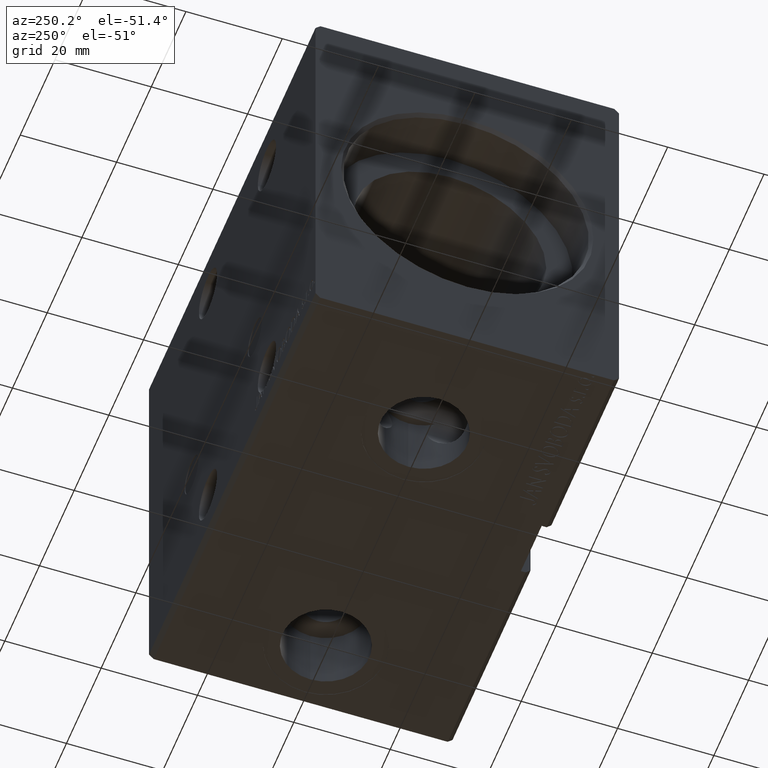
[diagram: clean part render]
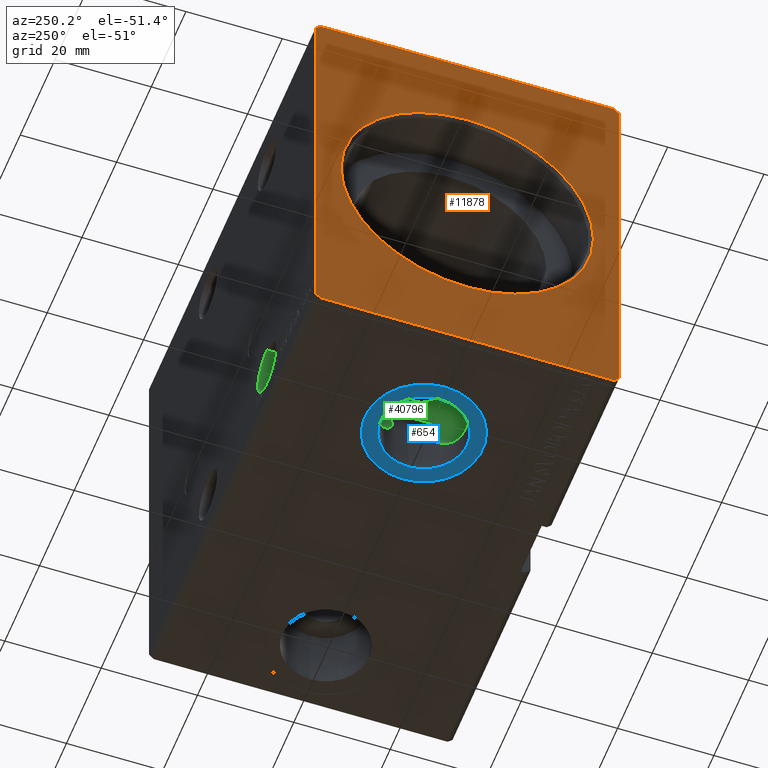
[diagram: same view with three faces highlighted in distinct colors, each labeled with its STEP entity id]
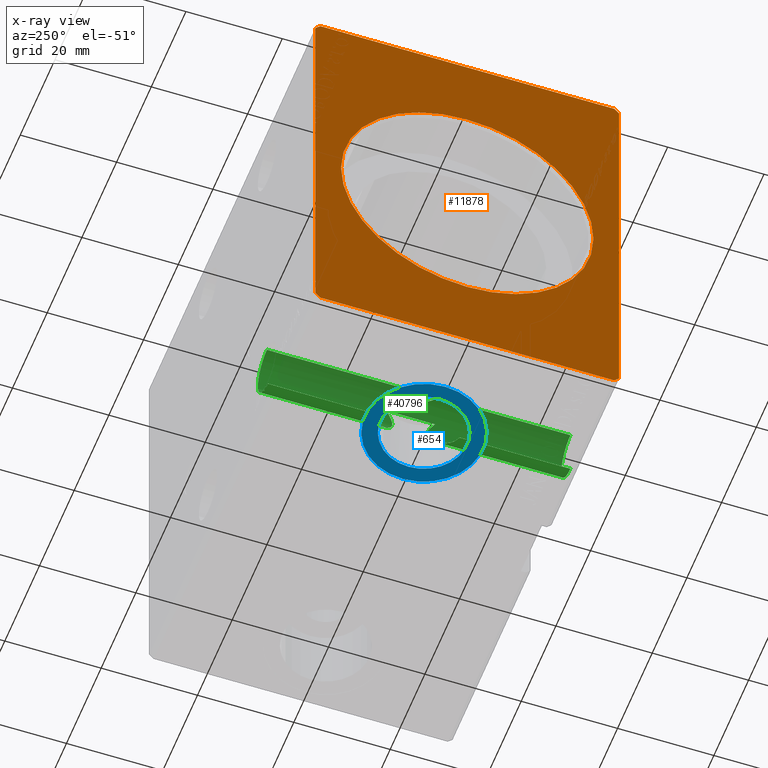
[diagram: x-ray of the same camera — body ghosted, the three highlighted faces saturated]
A machine part, auxiliary view with three faces highlighted in distinct colors.
The next image is the same camera in x-ray (body ghosted, the three faces saturated) — at least one of them is partly hidden behind the body in this view.
Their STEP definitions:

[orange] entity #11878 — the highlighted planar face has unit normal (1, 0, 0).
#94 = DIRECTION ( 'NONE',  ( 0.000000000000000000, 0.000000000000000000, -1.000000000000000000 ) ) ;
#215 = EDGE_CURVE ( 'NONE', #16949, #5249, #23478, .T. ) ;
#374 = CARTESIAN_POINT ( 'NONE',  ( 0.000000000000000000, -31.50000000000000000, -41.50000000000000711 ) ) ;
#994 = FACE_BOUND ( 'NONE', #37505, .T. ) ;
#1101 = CARTESIAN_POINT ( 'NONE',  ( 0.000000000000000000, -30.50000000000000711, -42.50000000000000711 ) ) ;
#2665 = LINE ( 'NONE', #21940, #16875 ) ;
#2708 = EDGE_CURVE ( 'NONE', #15067, #21710, #35080, .T. ) ;
#4043 = DIRECTION ( 'NONE',  ( 0.000000000000000000, 0.000000000000000000, -1.000000000000000000 ) ) ;
#4046 = VERTEX_POINT ( 'NONE', #9899 ) ;
#5249 = VERTEX_POINT ( 'NONE', #8014 ) ;
#5703 = ORIENTED_EDGE ( 'NONE', *, *, #29625, .F. ) ;
#6268 = CARTESIAN_POINT ( 'NONE',  ( 0.000000000000000000, -30.50000000000000711, -42.50000000000000711 ) ) ;
#6336 = EDGE_CURVE ( 'NONE', #40453, #4046, #23295, .T. ) ;
#6563 = CIRCLE ( 'NONE', #23795, 26.19999999999998863 ) ;
#7298 = ORIENTED_EDGE ( 'NONE', *, *, #20080, .F. ) ;
#7536 = DIRECTION ( 'NONE',  ( 0.000000000000000000, -0.7071067811865474617, 0.7071067811865474617 ) ) ;
#7614 = CARTESIAN_POINT ( 'NONE',  ( 0.000000000000000000, 0.000000000000000000, 0.000000000000000000 ) ) ;
#8014 = CARTESIAN_POINT ( 'NONE',  ( 0.000000000000000000, 30.50000000000001776, -42.50000000000000711 ) ) ;
#9511 = ORIENTED_EDGE ( 'NONE', *, *, #18408, .F. ) ;
#9899 = CARTESIAN_POINT ( 'NONE',  ( 0.000000000000000000, 30.50000000000001421, 42.49999999999999289 ) ) ;
#10035 = CARTESIAN_POINT ( 'NONE',  ( 0.000000000000000000, -31.50000000000000000, 41.49999999999999289 ) ) ;
#10732 = AXIS2_PLACEMENT_3D ( 'NONE', #18161, #23748, #24570 ) ;
#11010 = DIRECTION ( 'NONE',  ( 0.000000000000000000, 0.7071067811865451302, -0.7071067811865500152 ) ) ;
#11558 = ORIENTED_EDGE ( 'NONE', *, *, #17036, .F. ) ;
#11832 = ORIENTED_EDGE ( 'NONE', *, *, #2708, .F. ) ;
#11878 = ADVANCED_FACE ( 'NONE', ( #994, #14061 ), #38884, .F. ) ;
#12058 = CIRCLE ( 'NONE', #10732, 26.19999999999998863 ) ;
#12711 = CARTESIAN_POINT ( 'NONE',  ( 0.000000000000000000, -30.50000000000000355, 42.49999999999999289 ) ) ;
#13912 = LINE ( 'NONE', #29856, #24741 ) ;
#14061 = FACE_OUTER_BOUND ( 'NONE', #26430, .T. ) ;
#15067 = VERTEX_POINT ( 'NONE', #39847 ) ;
#15180 = LINE ( 'NONE', #34012, #24568 ) ;
#15520 = VECTOR ( 'NONE', #33374, 1000.000000000000000 ) ;
#16875 = VECTOR ( 'NONE', #18828, 999.9999999999998863 ) ;
#16949 = VERTEX_POINT ( 'NONE', #6268 ) ;
#17036 = EDGE_CURVE ( 'NONE', #4046, #23264, #27841, .T. ) ;
#17182 = EDGE_CURVE ( 'NONE', #19348, #40453, #23858, .T. ) ;
#17525 = ORIENTED_EDGE ( 'NONE', *, *, #31252, .T. ) ;
#18161 = CARTESIAN_POINT ( 'NONE',  ( 0.000000000000000000, 0.000000000000000000, 0.000000000000000000 ) ) ;
#18352 = CARTESIAN_POINT ( 'NONE',  ( 0.000000000000000000, 0.000000000000000000, 26.19999999999998863 ) ) ;
#18408 = EDGE_CURVE ( 'NONE', #23264, #15067, #2665, .T. ) ;
#18509 = VERTEX_POINT ( 'NONE', #23510 ) ;
#18828 = DIRECTION ( 'NONE',  ( 0.000000000000000000, -0.7071067811865462405, -0.7071067811865489050 ) ) ;
#19348 = VERTEX_POINT ( 'NONE', #39923 ) ;
#19671 = CARTESIAN_POINT ( 'NONE',  ( 0.000000000000000000, 31.50000000000001421, 41.49999999999999289 ) ) ;
#20080 = EDGE_CURVE ( 'NONE', #21710, #16949, #13912, .T. ) ;
#20759 = CARTESIAN_POINT ( 'NONE',  ( 0.000000000000000000, 31.50000000000001421, -41.50000000000000711 ) ) ;
#21710 = VERTEX_POINT ( 'NONE', #374 ) ;
#21940 = CARTESIAN_POINT ( 'NONE',  ( 0.000000000000000000, -30.50000000000000355, 42.49999999999999289 ) ) ;
#23264 = VERTEX_POINT ( 'NONE', #12711 ) ;
#23295 = LINE ( 'NONE', #35908, #23728 ) ;
#23478 = LINE ( 'NONE', #1101, #26872 ) ;
#23510 = CARTESIAN_POINT ( 'NONE',  ( 0.000000000000000000, 3.208574613766063722E-15, -26.19999999999998863 ) ) ;
#23728 = VECTOR ( 'NONE', #7536, 1000.000000000000114 ) ;
#23748 = DIRECTION ( 'NONE',  ( 1.000000000000000000, 0.000000000000000000, 0.000000000000000000 ) ) ;
#23795 = AXIS2_PLACEMENT_3D ( 'NONE', #35524, #35324, #4043 ) ;
#23858 = LINE ( 'NONE', #20759, #15520 ) ;
#24568 = VECTOR ( 'NONE', #27817, 999.9999999999998863 ) ;
#24570 = DIRECTION ( 'NONE',  ( 0.000000000000000000, 0.000000000000000000, -1.000000000000000000 ) ) ;
#24741 = VECTOR ( 'NONE', #11010, 1000.000000000000114 ) ;
#25271 = ORIENTED_EDGE ( 'NONE', *, *, #35859, .T. ) ;
#26062 = DIRECTION ( 'NONE',  ( 1.000000000000000000, 0.000000000000000000, 0.000000000000000000 ) ) ;
#26273 = ORIENTED_EDGE ( 'NONE', *, *, #17182, .F. ) ;
#26430 = EDGE_LOOP ( 'NONE', ( #30170, #26273, #5703, #31308, #7298, #11832, #9511, #11558 ) ) ;
#26872 = VECTOR ( 'NONE', #35683, 1000.000000000000000 ) ;
#27817 = DIRECTION ( 'NONE',  ( 0.000000000000000000, 0.7071067811865462405, 0.7071067811865489050 ) ) ;
#27841 = LINE ( 'NONE', #29468, #32677 ) ;
#29046 = AXIS2_PLACEMENT_3D ( 'NONE', #7614, #26062, #36187 ) ;
#29468 = CARTESIAN_POINT ( 'NONE',  ( 0.000000000000000000, 30.50000000000001421, 42.49999999999999289 ) ) ;
#29625 = EDGE_CURVE ( 'NONE', #5249, #19348, #15180, .T. ) ;
#29856 = CARTESIAN_POINT ( 'NONE',  ( 0.000000000000000000, -31.50000000000000000, -41.50000000000000711 ) ) ;
#30170 = ORIENTED_EDGE ( 'NONE', *, *, #6336, .F. ) ;
#31252 = EDGE_CURVE ( 'NONE', #18509, #36710, #12058, .T. ) ;
#31308 = ORIENTED_EDGE ( 'NONE', *, *, #215, .F. ) ;
#32677 = VECTOR ( 'NONE', #32755, 1000.000000000000000 ) ;
#32755 = DIRECTION ( 'NONE',  ( 0.000000000000000000, -1.000000000000000000, 0.000000000000000000 ) ) ;
#33374 = DIRECTION ( 'NONE',  ( 0.000000000000000000, 0.000000000000000000, 1.000000000000000000 ) ) ;
#34012 = CARTESIAN_POINT ( 'NONE',  ( 0.000000000000000000, 30.50000000000001776, -42.50000000000000711 ) ) ;
#35080 = LINE ( 'NONE', #10035, #40159 ) ;
#35324 = DIRECTION ( 'NONE',  ( 1.000000000000000000, 0.000000000000000000, 0.000000000000000000 ) ) ;
#35524 = CARTESIAN_POINT ( 'NONE',  ( 0.000000000000000000, 0.000000000000000000, 0.000000000000000000 ) ) ;
#35683 = DIRECTION ( 'NONE',  ( 0.000000000000000000, 1.000000000000000000, 0.000000000000000000 ) ) ;
#35859 = EDGE_CURVE ( 'NONE', #36710, #18509, #6563, .T. ) ;
#35908 = CARTESIAN_POINT ( 'NONE',  ( 0.000000000000000000, 31.50000000000001421, 41.49999999999999289 ) ) ;
#36187 = DIRECTION ( 'NONE',  ( 0.000000000000000000, 0.000000000000000000, -1.000000000000000000 ) ) ;
#36710 = VERTEX_POINT ( 'NONE', #18352 ) ;
#37505 = EDGE_LOOP ( 'NONE', ( #25271, #17525 ) ) ;
#38884 = PLANE ( 'NONE',  #29046 ) ;
#39847 = CARTESIAN_POINT ( 'NONE',  ( 0.000000000000000000, -31.50000000000000000, 41.49999999999999289 ) ) ;
#39923 = CARTESIAN_POINT ( 'NONE',  ( 0.000000000000000000, 31.50000000000001421, -41.50000000000000711 ) ) ;
#40159 = VECTOR ( 'NONE', #94, 1000.000000000000000 ) ;
#40453 = VERTEX_POINT ( 'NONE', #19671 ) ;

[blue] entity #654 — the highlighted planar face has unit normal (0, 0, -1).
#654 = ADVANCED_FACE ( 'NONE', ( #2372, #33233 ), #11507, .T. ) ;
#2110 = EDGE_CURVE ( 'NONE', #25720, #40090, #9092, .T. ) ;
#2372 = FACE_BOUND ( 'NONE', #18502, .T. ) ;
#2555 = CIRCLE ( 'NONE', #15133, 9.000000000000001776 ) ;
#3654 = DIRECTION ( 'NONE',  ( 0.000000000000000000, 0.000000000000000000, -1.000000000000000000 ) ) ;
#3802 = AXIS2_PLACEMENT_3D ( 'NONE', #35541, #3654, #12989 ) ;
#3896 = EDGE_LOOP ( 'NONE', ( #27431, #39104 ) ) ;
#4855 = DIRECTION ( 'NONE',  ( 0.000000000000000000, 0.000000000000000000, -1.000000000000000000 ) ) ;
#5677 = EDGE_CURVE ( 'NONE', #8402, #6549, #2555, .T. ) ;
#6549 = VERTEX_POINT ( 'NONE', #38764 ) ;
#6993 = CARTESIAN_POINT ( 'NONE',  ( 12.75000000000000178, -2.665753871451547918E-15, -42.40000000000000568 ) ) ;
#8402 = VERTEX_POINT ( 'NONE', #31538 ) ;
#8441 = DIRECTION ( 'NONE',  ( 0.000000000000000000, 0.000000000000000000, -1.000000000000000000 ) ) ;
#8592 = CARTESIAN_POINT ( 'NONE',  ( 0.000000000000000000, 0.000000000000000000, -42.40000000000000568 ) ) ;
#9092 = CIRCLE ( 'NONE', #20334, 12.25000000000000000 ) ;
#11507 = PLANE ( 'NONE',  #14988 ) ;
#11754 = CIRCLE ( 'NONE', #3802, 9.000000000000001776 ) ;
#12830 = DIRECTION ( 'NONE',  ( -1.000000000000000000, 0.000000000000000000, 0.000000000000000000 ) ) ;
#12989 = DIRECTION ( 'NONE',  ( -1.000000000000000000, 0.000000000000000000, 0.000000000000000000 ) ) ;
#14873 = DIRECTION ( 'NONE',  ( -1.000000000000000000, 0.000000000000000000, 0.000000000000000000 ) ) ;
#14988 = AXIS2_PLACEMENT_3D ( 'NONE', #8592, #4855, #15018 ) ;
#15018 = DIRECTION ( 'NONE',  ( -1.000000000000000000, 0.000000000000000000, -0.000000000000000000 ) ) ;
#15133 = AXIS2_PLACEMENT_3D ( 'NONE', #16425, #38565, #28650 ) ;
#16425 = CARTESIAN_POINT ( 'NONE',  ( 25.00000000000000000, -2.665753871451547918E-15, -42.40000000000000568 ) ) ;
#17577 = CIRCLE ( 'NONE', #31439, 12.25000000000000000 ) ;
#18502 = EDGE_LOOP ( 'NONE', ( #27207, #37741 ) ) ;
#19312 = EDGE_CURVE ( 'NONE', #40090, #25720, #17577, .T. ) ;
#20334 = AXIS2_PLACEMENT_3D ( 'NONE', #23174, #38287, #12830 ) ;
#23174 = CARTESIAN_POINT ( 'NONE',  ( 25.00000000000000000, -2.665753871451547918E-15, -42.40000000000000568 ) ) ;
#23573 = CARTESIAN_POINT ( 'NONE',  ( 25.00000000000000000, -2.665753871451547918E-15, -42.40000000000000568 ) ) ;
#25720 = VERTEX_POINT ( 'NONE', #6993 ) ;
#26857 = CARTESIAN_POINT ( 'NONE',  ( 37.25000000000000711, -1.165561542496040578E-15, -42.40000000000000568 ) ) ;
#27207 = ORIENTED_EDGE ( 'NONE', *, *, #39554, .F. ) ;
#27431 = ORIENTED_EDGE ( 'NONE', *, *, #2110, .T. ) ;
#28650 = DIRECTION ( 'NONE',  ( -1.000000000000000000, 0.000000000000000000, 0.000000000000000000 ) ) ;
#31439 = AXIS2_PLACEMENT_3D ( 'NONE', #23573, #8441, #14873 ) ;
#31538 = CARTESIAN_POINT ( 'NONE',  ( 34.00000000000000000, -1.563571752218929810E-15, -42.40000000000000568 ) ) ;
#33233 = FACE_OUTER_BOUND ( 'NONE', #3896, .T. ) ;
#35541 = CARTESIAN_POINT ( 'NONE',  ( 25.00000000000000000, -2.665753871451547918E-15, -42.40000000000000568 ) ) ;
#37741 = ORIENTED_EDGE ( 'NONE', *, *, #5677, .F. ) ;
#38287 = DIRECTION ( 'NONE',  ( 0.000000000000000000, 0.000000000000000000, -1.000000000000000000 ) ) ;
#38565 = DIRECTION ( 'NONE',  ( 0.000000000000000000, 0.000000000000000000, -1.000000000000000000 ) ) ;
#38764 = CARTESIAN_POINT ( 'NONE',  ( 16.00000000000000000, -2.665753871451547918E-15, -42.40000000000000568 ) ) ;
#39104 = ORIENTED_EDGE ( 'NONE', *, *, #19312, .T. ) ;
#39554 = EDGE_CURVE ( 'NONE', #6549, #8402, #11754, .T. ) ;
#40090 = VERTEX_POINT ( 'NONE', #26857 ) ;

[green] entity #40796 — the highlighted cylindrical surface (edge-blend (fillet) strip) has radius 5.25 mm, axis along (-0, -1, -0).
#339 = AXIS2_PLACEMENT_3D ( 'NONE', #35731, #35326, #943 ) ;
#583 = ORIENTED_EDGE ( 'NONE', *, *, #25746, .T. ) ;
#584 = CARTESIAN_POINT ( 'NONE',  ( 28.99839540368256863, 8.079827796171874965, -36.67563326641717936 ) ) ;
#652 = CARTESIAN_POINT ( 'NONE',  ( 28.26923076923077360, 31.50000000000002842, -36.74309210227126954 ) ) ;
#684 = CARTESIAN_POINT ( 'NONE',  ( 32.50249930594109316, 31.50000000000002842, -28.80000000000000782 ) ) ;
#789 = CARTESIAN_POINT ( 'NONE',  ( 32.59350529482215819, 4.835035883539086754, -34.05079700972326862 ) ) ;
#860 = CARTESIAN_POINT ( 'NONE',  ( 30.01923076923077005, 31.50000000000002842, -36.34615384615384670 ) ) ;
#920 = CARTESIAN_POINT ( 'NONE',  ( 31.07321886333549443, -6.659957587000611134, -35.77930101341501512 ) ) ;
#943 = DIRECTION ( 'NONE',  ( 0.000000000000000000, 0.000000000000000000, 1.000000000000000000 ) ) ;
#1066 = LINE ( 'NONE', #13715, #33651 ) ;
#1099 = ORIENTED_EDGE ( 'NONE', *, *, #34732, .T. ) ;
#1263 = ORIENTED_EDGE ( 'NONE', *, *, #28227, .T. ) ;
#1330 = CARTESIAN_POINT ( 'NONE',  ( 33.25144789116190225, -3.593552888541374113, -31.25656014728340182 ) ) ;
#1582 = CIRCLE ( 'NONE', #339, 5.249999999999997335 ) ;
#1610 = CARTESIAN_POINT ( 'NONE',  ( 30.28846153846154010, 31.50000000000002842, -36.22498082398036701 ) ) ;
#1790 = CARTESIAN_POINT ( 'NONE',  ( 31.99260834176379831, 31.50000000000001421, -34.90904365317872049 ) ) ;
#1816 = VERTEX_POINT ( 'NONE', #1974 ) ;
#1974 = CARTESIAN_POINT ( 'NONE',  ( 30.28846153846154010, 31.50000000000002842, -36.22498082398037411 ) ) ;
#2512 = CARTESIAN_POINT ( 'NONE',  ( 28.00000000000000355, -4.000000000000000000, -26.25000000000000711 ) ) ;
#2572 = DIRECTION ( 'NONE',  ( 0.000000000000000000, 0.000000000000000000, -1.000000000000000000 ) ) ;
#2576 = ORIENTED_EDGE ( 'NONE', *, *, #10570, .T. ) ;
#2707 = CARTESIAN_POINT ( 'NONE',  ( 28.15535111791911405, -3.883486661560668018, -26.25000000000000711 ) ) ;
#2761 = CARTESIAN_POINT ( 'NONE',  ( 29.94316842260553457, 0.7764885955402900386, -26.62278814035358465 ) ) ;
#2765 = LINE ( 'NONE', #5880, #8206 ) ;
#2847 = CARTESIAN_POINT ( 'NONE',  ( 28.00000000000000355, 31.50000000000002842, -31.50000000000000000 ) ) ;
#2906 = CARTESIAN_POINT ( 'NONE',  ( 28.00000000000009592, -8.485281374238560659, -36.75000000000000000 ) ) ;
#2948 = DIRECTION ( 'NONE',  ( -0.000000000000000000, -1.000000000000000000, -5.507058653894625853E-17 ) ) ;
#3817 = CARTESIAN_POINT ( 'NONE',  ( 32.26259123308183518, -5.330200586698289555, -34.59367876446104617 ) ) ;
#3958 = LINE ( 'NONE', #860, #9791 ) ;
#4052 = AXIS2_PLACEMENT_3D ( 'NONE', #37120, #12275, #27404 ) ;
#4226 = CARTESIAN_POINT ( 'NONE',  ( 28.25226097365503364, -8.396093651688483206, -36.75000000000001421 ) ) ;
#4229 = DIRECTION ( 'NONE',  ( -0.000000000000000000, -1.000000000000000000, -5.507058653894625853E-17 ) ) ;
#4296 = CARTESIAN_POINT ( 'NONE',  ( 32.61239224535924563, 4.805316558162496143, -28.98325662350298870 ) ) ;
#4328 = CARTESIAN_POINT ( 'NONE',  ( 32.50249930594109316, 4.971167283883475285, -28.80000000000000782 ) ) ;
#4984 = ORIENTED_EDGE ( 'NONE', *, *, #34321, .F. ) ;
#5049 = EDGE_CURVE ( 'NONE', #13507, #29747, #15101, .T. ) ;
#5305 = CIRCLE ( 'NONE', #10617, 5.249999999999997335 ) ;
#5675 = CARTESIAN_POINT ( 'NONE',  ( 29.87570568617721989, 1.156909202716957186, -26.59583968683499222 ) ) ;
#5880 = CARTESIAN_POINT ( 'NONE',  ( 28.86302342089060247, 31.50000000000002842, -36.67857997669189984 ) ) ;
#6092 = VERTEX_POINT ( 'NONE', #4328 ) ;
#6196 = CARTESIAN_POINT ( 'NONE',  ( 28.26923076923077360, 31.30000000000001492, -36.74309210227126954 ) ) ;
#6216 = CIRCLE ( 'NONE', #20778, 5.249999999999997335 ) ;
#6495 = VECTOR ( 'NONE', #31573, 1000.000000000000000 ) ;
#6821 = VERTEX_POINT ( 'NONE', #2906 ) ;
#7125 = CARTESIAN_POINT ( 'NONE',  ( 33.24838697486192984, -3.600573145518977114, -31.80232776514764481 ) ) ;
#7162 = EDGE_CURVE ( 'NONE', #20880, #36572, #22537, .T. ) ;
#7193 = CARTESIAN_POINT ( 'NONE',  ( 33.20635492453020277, 3.695669416002513863, -32.18735332703968055 ) ) ;
#7332 = CARTESIAN_POINT ( 'NONE',  ( 29.22269784940499093, -7.952126355574261396, -36.61103847274182499 ) ) ;
#7399 = CARTESIAN_POINT ( 'NONE',  ( 32.89003676164426793, 4.333501410248885577, -29.57684835708503002 ) ) ;
#7677 = CARTESIAN_POINT ( 'NONE',  ( 28.00000000000000355, 31.50000000000002842, -36.75000000000000000 ) ) ;
#7811 = DIRECTION ( 'NONE',  ( 0.000000000000000000, -1.000000000000000000, -0.000000000000000000 ) ) ;
#8074 = VERTEX_POINT ( 'NONE', #30595 ) ;
#8091 = CARTESIAN_POINT ( 'NONE',  ( 30.01923076923077005, 31.50000000000002842, -36.34615384615384670 ) ) ;
#8172 = DIRECTION ( 'NONE',  ( 0.000000000000000000, 0.000000000000000000, 1.000000000000000000 ) ) ;
#8206 = VECTOR ( 'NONE', #21642, 1000.000000000000000 ) ;
#8524 = CARTESIAN_POINT ( 'NONE',  ( 29.08893891966819822, -2.903318359179587471, -26.35809328763805226 ) ) ;
#8666 = DIRECTION ( 'NONE',  ( -0.000000000000000000, -1.000000000000000000, -5.507058653894625853E-17 ) ) ;
#8729 = CARTESIAN_POINT ( 'NONE',  ( 30.00000000000000355, -2.053430469849773110E-15, -26.64587804026310280 ) ) ;
#8769 = VECTOR ( 'NONE', #2948, 1000.000000000000000 ) ;
#9130 = EDGE_CURVE ( 'NONE', #13507, #27856, #3958, .T. ) ;
#9135 = CARTESIAN_POINT ( 'NONE',  ( 29.76633653226125276, -1.522855244771721628, -26.55557260921003149 ) ) ;
#9473 = VECTOR ( 'NONE', #4229, 1000.000000000000000 ) ;
#9610 = LINE ( 'NONE', #31947, #40659 ) ;
#9635 = CARTESIAN_POINT ( 'NONE',  ( 28.00000000000000355, 31.30000000000001492, -31.50000000000000000 ) ) ;
#9699 = EDGE_CURVE ( 'NONE', #14765, #31615, #38191, .T. ) ;
#9758 = VERTEX_POINT ( 'NONE', #29509 ) ;
#9791 = VECTOR ( 'NONE', #16607, 1000.000000000000000 ) ;
#9847 = CARTESIAN_POINT ( 'NONE',  ( 32.71187504199514962, -4.643152877768041975, -29.17423996665695185 ) ) ;
#9938 = DIRECTION ( 'NONE',  ( -0.000000000000000000, -1.000000000000000000, -5.507058653894625853E-17 ) ) ;
#10061 = EDGE_CURVE ( 'NONE', #6821, #12779, #1066, .T. ) ;
#10261 = CARTESIAN_POINT ( 'NONE',  ( 32.96902614846746360, -4.185280637644433810, -29.78916438976628456 ) ) ;
#10327 = CARTESIAN_POINT ( 'NONE',  ( 33.22178636411108954, 3.661002062035550342, -32.05930808703784152 ) ) ;
#10351 = CARTESIAN_POINT ( 'NONE',  ( 31.49410893708455461, 31.50000000000002842, -35.41838011629624816 ) ) ;
#10363 = ORIENTED_EDGE ( 'NONE', *, *, #35159, .T. ) ;
#10463 = CARTESIAN_POINT ( 'NONE',  ( 29.67436925629790423, -7.695307840376844233, -36.48138453588469332 ) ) ;
#10570 = EDGE_CURVE ( 'NONE', #14765, #8074, #36993, .T. ) ;
#10617 = AXIS2_PLACEMENT_3D ( 'NONE', #26181, #13759, #35690 ) ;
#10742 = CARTESIAN_POINT ( 'NONE',  ( 31.99697168527629998, 5.664548906880339629, -34.91033173191557637 ) ) ;
#10746 = DIRECTION ( 'NONE',  ( 0.000000000000000000, 1.000000000000000000, 5.507058653894625853E-17 ) ) ;
#10802 = CARTESIAN_POINT ( 'NONE',  ( 28.00000000000000355, -31.50000000000000000, -36.75000000000000711 ) ) ;
#10816 = DIRECTION ( 'NONE',  ( -0.000000000000000000, -1.000000000000000000, -5.507058653894625853E-17 ) ) ;
#10944 = CARTESIAN_POINT ( 'NONE',  ( 28.00000000000000355, -31.50000000000000000, -31.50000000000000711 ) ) ;
#11014 = CARTESIAN_POINT ( 'NONE',  ( 28.00000000000000355, 31.30000000000001492, -31.50000000000000000 ) ) ;
#11297 = CARTESIAN_POINT ( 'NONE',  ( 29.55616618555819386, 2.068426186421294055, -26.48513050694855053 ) ) ;
#11302 = CARTESIAN_POINT ( 'NONE',  ( 28.00000000000000355, 31.50000000000002842, -31.50000000000000000 ) ) ;
#11444 = CARTESIAN_POINT ( 'NONE',  ( 28.58692579569004621, -3.488793333123474838, -26.28100002758705855 ) ) ;
#11468 = CARTESIAN_POINT ( 'NONE',  ( 32.20134712561158352, 31.50000000000002842, -34.64820303190808914 ) ) ;
#11500 = CARTESIAN_POINT ( 'NONE',  ( 28.30824521786994552, 3.768816086597537751, -26.25000000000000711 ) ) ;
#11906 = CARTESIAN_POINT ( 'NONE',  ( 30.00000000000001421, 0.1936929401515311844, -26.64587804026310636 ) ) ;
#11930 = EDGE_CURVE ( 'NONE', #21097, #1816, #35780, .T. ) ;
#11980 = CIRCLE ( 'NONE', #29744, 5.249999999999997335 ) ;
#12003 = B_SPLINE_CURVE_WITH_KNOTS ( 'NONE', 3,
 ( #35708, #38409, #9847, #13363, #10261, #16264, #22684, #17089, #1330, #7125, #29316, #23090, #22482, #19376, #26403, #19582, #31982, #3817, #22889, #35503, #920, #13570, #26197, #38813, #10463, #7332, #19990, #32601, #4226, #39021 ),
 .UNSPECIFIED., .F., .F.,
 ( 4, 2, 2, 2, 2, 2, 2, 2, 2, 2, 2, 2, 2, 2, 4 ),
 ( 0.000000000000000000, 0.0008071024603539738796, 0.001614204920707947759, 0.002421307381061921313, 0.003228409841415895518, 0.004035512301769869289, 0.004842614762123842627, 0.005649717222477816832, 0.006456819682831791037, 0.008071024603539740314, 0.009685229524247690458, 0.01049233198460166119, 0.01129943444495563019, 0.01210653690530960266, 0.01291363936566357340 ),
 .UNSPECIFIED. ) ;
#12106 = CARTESIAN_POINT ( 'NONE',  ( 29.98855780500460355, 0.3900507907648164685, -26.64111773155160634 ) ) ;
#12234 = ORIENTED_EDGE ( 'NONE', *, *, #10061, .T. ) ;
#12253 = CARTESIAN_POINT ( 'NONE',  ( 29.63514957924284943, -1.884791875338486689, -26.51065206449813161 ) ) ;
#12275 = DIRECTION ( 'NONE',  ( -0.000000000000000000, 1.000000000000000000, 5.507058653894625853E-17 ) ) ;
#12779 = VERTEX_POINT ( 'NONE', #10802 ) ;
#13224 = CARTESIAN_POINT ( 'NONE',  ( 31.85706388014904888, 5.833603055918780811, -35.06792960407344140 ) ) ;
#13363 = CARTESIAN_POINT ( 'NONE',  ( 32.88997847107852124, -4.333604162310006558, -29.57671200896456654 ) ) ;
#13431 = CARTESIAN_POINT ( 'NONE',  ( 32.95495435223187997, 4.212036518139114172, -33.25090076812314521 ) ) ;
#13485 = VERTEX_POINT ( 'NONE', #652 ) ;
#13507 = VERTEX_POINT ( 'NONE', #8091 ) ;
#13570 = CARTESIAN_POINT ( 'NONE',  ( 30.50533783128135568, -7.123974380155897457, -36.11892088993678129 ) ) ;
#13639 = CARTESIAN_POINT ( 'NONE',  ( 31.07482485393644112, 6.658201535389141945, -35.77778164595130761 ) ) ;
#13662 = LINE ( 'NONE', #10351, #38212 ) ;
#13715 = CARTESIAN_POINT ( 'NONE',  ( 28.00000000000000355, 31.50000000000002842, -36.75000000000000000 ) ) ;
#13724 = CARTESIAN_POINT ( 'NONE',  ( 28.00000000000000355, 3.999999999999996447, -26.25000000000000711 ) ) ;
#13735 = LINE ( 'NONE', #684, #24447 ) ;
#13759 = DIRECTION ( 'NONE',  ( 0.000000000000000000, 1.000000000000000000, -0.000000000000000000 ) ) ;
#14103 = AXIS2_PLACEMENT_3D ( 'NONE', #10944, #7811, #25856 ) ;
#14158 = CARTESIAN_POINT ( 'NONE',  ( 28.86302342089060247, 31.30000000000001492, -36.67857997669189984 ) ) ;
#14171 = DIRECTION ( 'NONE',  ( 0.000000000000000000, 1.000000000000000000, 5.507058653894625853E-17 ) ) ;
#14443 = AXIS2_PLACEMENT_3D ( 'NONE', #2847, #8666, #21522 ) ;
#14718 = CIRCLE ( 'NONE', #35858, 5.249999999999997335 ) ;
#14765 = VERTEX_POINT ( 'NONE', #1790 ) ;
#14938 = ORIENTED_EDGE ( 'NONE', *, *, #33227, .F. ) ;
#14956 = CARTESIAN_POINT ( 'NONE',  ( 31.92673162601504444, 31.30000000000001492, -34.98472075455885744 ) ) ;
#15101 = CIRCLE ( 'NONE', #38225, 5.249999999999997335 ) ;
#15112 = CARTESIAN_POINT ( 'NONE',  ( 31.49410893708455461, 31.30000000000000071, -35.41838011629625527 ) ) ;
#15178 = VERTEX_POINT ( 'NONE', #13724 ) ;
#15561 = CARTESIAN_POINT ( 'NONE',  ( 29.95564324695108738, -0.7694580020645011009, -26.62690819884094040 ) ) ;
#15844 = ORIENTED_EDGE ( 'NONE', *, *, #24470, .F. ) ;
#16027 = CARTESIAN_POINT ( 'NONE',  ( 30.00000000000000355, -2.053430469849773110E-15, -26.64587804026310280 ) ) ;
#16222 = ORIENTED_EDGE ( 'NONE', *, *, #11930, .F. ) ;
#16264 = CARTESIAN_POINT ( 'NONE',  ( 33.10246986897183774, -3.920705777433834527, -30.24183443631941870 ) ) ;
#16439 = VERTEX_POINT ( 'NONE', #15112 ) ;
#16535 = CARTESIAN_POINT ( 'NONE',  ( 28.00000000000000355, 8.485281374238567764, -36.75000000000000000 ) ) ;
#16607 = DIRECTION ( 'NONE',  ( -0.000000000000000000, -1.000000000000000000, -5.507058653894625853E-17 ) ) ;
#16901 = ORIENTED_EDGE ( 'NONE', *, *, #18721, .T. ) ;
#17089 = CARTESIAN_POINT ( 'NONE',  ( 33.23160277185719025, -3.639918902289857705, -30.99046211007217977 ) ) ;
#17106 = ORIENTED_EDGE ( 'NONE', *, *, #35313, .F. ) ;
#17159 = CARTESIAN_POINT ( 'NONE',  ( 33.24930188362613137, 3.598474814633961572, -31.65992194442431185 ) ) ;
#17177 = LINE ( 'NONE', #32892, #23252 ) ;
#17542 = EDGE_LOOP ( 'NONE', ( #4984, #10363, #15844, #17757, #21299, #2576, #21707, #30496, #24967, #34364, #16222, #23078, #26223, #25416, #32829, #21389, #14938, #34588, #19818, #583, #17106, #1263, #12234, #1099, #18164, #31414, #16901 ) ) ;
#17711 = VERTEX_POINT ( 'NONE', #21428 ) ;
#17757 = ORIENTED_EDGE ( 'NONE', *, *, #38761, .T. ) ;
#17924 = CARTESIAN_POINT ( 'NONE',  ( 28.58977998248318997, 3.502065479541749848, -26.27713961463661363 ) ) ;
#17985 = VERTEX_POINT ( 'NONE', #14956 ) ;
#18164 = ORIENTED_EDGE ( 'NONE', *, *, #30061, .F. ) ;
#18335 = CARTESIAN_POINT ( 'NONE',  ( 28.00000000000000355, 31.30000000000000071, -31.50000000000000000 ) ) ;
#18630 = CIRCLE ( 'NONE', #4052, 5.249999999999997335 ) ;
#18721 = EDGE_CURVE ( 'NONE', #23285, #15178, #39720, .T. ) ;
#18813 = CYLINDRICAL_SURFACE ( 'NONE', #14443, 5.249999999999997335 ) ;
#18817 = DIRECTION ( 'NONE',  ( -3.152240373489285191E-13, 0.000000000000000000, -1.000000000000000000 ) ) ;
#18960 = CIRCLE ( 'NONE', #22461, 5.249999999999997335 ) ;
#19161 = DIRECTION ( 'NONE',  ( -0.000000000000000000, 1.000000000000000000, -0.000000000000000000 ) ) ;
#19168 = VECTOR ( 'NONE', #10746, 1000.000000000000000 ) ;
#19376 = CARTESIAN_POINT ( 'NONE',  ( 32.95326830917984040, -4.215225687027825963, -33.25562162745016792 ) ) ;
#19582 = CARTESIAN_POINT ( 'NONE',  ( 32.69212753593811982, -4.675829051438523898, -33.86519840367557777 ) ) ;
#19585 = CARTESIAN_POINT ( 'NONE',  ( 28.00000000000000355, 31.50000000000002842, -26.25000000000000355 ) ) ;
#19645 = CARTESIAN_POINT ( 'NONE',  ( 29.90296816711210681, 7.565162666609802855, -36.41555543611264767 ) ) ;
#19648 = EDGE_CURVE ( 'NONE', #13485, #20880, #1582, .T. ) ;
#19818 = ORIENTED_EDGE ( 'NONE', *, *, #7162, .T. ) ;
#19856 = CARTESIAN_POINT ( 'NONE',  ( 33.25121982066826121, 3.594075918232833899, -31.25470105989242597 ) ) ;
#19990 = CARTESIAN_POINT ( 'NONE',  ( 28.98517754201990115, -8.074007388929286932, -36.66256190678087279 ) ) ;
#20439 = CARTESIAN_POINT ( 'NONE',  ( 31.49410893708455461, 31.50000000000002842, -35.41838011629625527 ) ) ;
#20778 = AXIS2_PLACEMENT_3D ( 'NONE', #11014, #23840, #36255 ) ;
#20880 = VERTEX_POINT ( 'NONE', #7677 ) ;
#20896 = EDGE_CURVE ( 'NONE', #21097, #27856, #6216, .T. ) ;
#21097 = VERTEX_POINT ( 'NONE', #35997 ) ;
#21101 = CARTESIAN_POINT ( 'NONE',  ( 32.20134712561158352, 31.30000000000000071, -34.64820303190808914 ) ) ;
#21173 = CARTESIAN_POINT ( 'NONE',  ( 29.55952014908692504, -2.060957346364070464, -26.48618361703631408 ) ) ;
#21231 = CARTESIAN_POINT ( 'NONE',  ( 30.00000000000000355, -2.053430469849773110E-15, -26.64587804026310280 ) ) ;
#21299 = ORIENTED_EDGE ( 'NONE', *, *, #9699, .F. ) ;
#21389 = ORIENTED_EDGE ( 'NONE', *, *, #31377, .T. ) ;
#21428 = CARTESIAN_POINT ( 'NONE',  ( 28.00000000000000355, -31.50000000000000000, -26.25000000000001066 ) ) ;
#21433 = CARTESIAN_POINT ( 'NONE',  ( 29.63333331402532522, 1.889338825503146024, -26.51005086222620832 ) ) ;
#21522 = DIRECTION ( 'NONE',  ( 0.000000000000000000, 0.000000000000000000, -1.000000000000000000 ) ) ;
#21533 = VECTOR ( 'NONE', #14171, 1000.000000000000000 ) ;
#21642 = DIRECTION ( 'NONE',  ( 0.000000000000000000, 1.000000000000000000, 5.507058653894625853E-17 ) ) ;
#21707 = ORIENTED_EDGE ( 'NONE', *, *, #23279, .F. ) ;
#21738 = CARTESIAN_POINT ( 'NONE',  ( 28.00000000000000355, 31.50000000000002842, -31.50000000000000000 ) ) ;
#22183 = EDGE_CURVE ( 'NONE', #26442, #29747, #2765, .T. ) ;
#22209 = VERTEX_POINT ( 'NONE', #30343 ) ;
#22272 = DIRECTION ( 'NONE',  ( 3.304235192336777011E-14, 0.000000000000000000, -1.000000000000000000 ) ) ;
#22461 = AXIS2_PLACEMENT_3D ( 'NONE', #11302, #39861, #8172 ) ;
#22482 = CARTESIAN_POINT ( 'NONE',  ( 33.08962436763945902, -3.947224592150487599, -32.80873910227624890 ) ) ;
#22537 = LINE ( 'NONE', #31636, #25090 ) ;
#22684 = CARTESIAN_POINT ( 'NONE',  ( 33.15626062017206976, -3.805746510833896146, -30.47908235364516116 ) ) ;
#22752 = CARTESIAN_POINT ( 'NONE',  ( 30.32424944703825886, 7.272380113661209400, -36.22777201235059863 ) ) ;
#22889 = CARTESIAN_POINT ( 'NONE',  ( 32.00127014616709431, -5.672801715841330861, -34.92465175887961948 ) ) ;
#22951 = CARTESIAN_POINT ( 'NONE',  ( 33.24327641564041613, 3.612353948695807393, -31.79653127631243947 ) ) ;
#23078 = ORIENTED_EDGE ( 'NONE', *, *, #20896, .T. ) ;
#23090 = CARTESIAN_POINT ( 'NONE',  ( 33.14534123172962410, -3.829195150338681852, -32.57419036198258055 ) ) ;
#23252 = VECTOR ( 'NONE', #39107, 1000.000000000000000 ) ;
#23279 = EDGE_CURVE ( 'NONE', #17985, #8074, #9610, .T. ) ;
#23285 = VERTEX_POINT ( 'NONE', #16027 ) ;
#23840 = DIRECTION ( 'NONE',  ( -0.000000000000000000, 1.000000000000000000, -0.000000000000000000 ) ) ;
#23973 = VERTEX_POINT ( 'NONE', #6196 ) ;
#24267 = CARTESIAN_POINT ( 'NONE',  ( 29.82216577618911657, -1.335789515211385226, -26.57613181156802895 ) ) ;
#24447 = VECTOR ( 'NONE', #38367, 1000.000000000000000 ) ;
#24470 = EDGE_CURVE ( 'NONE', #30119, #22209, #39619, .T. ) ;
#24967 = ORIENTED_EDGE ( 'NONE', *, *, #40415, .F. ) ;
#25031 = CARTESIAN_POINT ( 'NONE',  ( 28.00000000000000355, 31.50000000000002842, -26.25000000000000355 ) ) ;
#25041 = DIRECTION ( 'NONE',  ( 0.000000000000000000, 0.000000000000000000, 1.000000000000000000 ) ) ;
#25090 = VECTOR ( 'NONE', #35149, 1000.000000000000000 ) ;
#25416 = ORIENTED_EDGE ( 'NONE', *, *, #5049, .T. ) ;
#25746 = EDGE_CURVE ( 'NONE', #36572, #6092, #39755, .T. ) ;
#25755 = DIRECTION ( 'NONE',  ( 0.000000000000000000, 1.000000000000000000, 5.507058653894625853E-17 ) ) ;
#25856 = DIRECTION ( 'NONE',  ( 0.000000000000000000, 0.000000000000000000, 1.000000000000000000 ) ) ;
#25860 = CARTESIAN_POINT ( 'NONE',  ( 32.37441739424195930, 5.163028447830273038, -34.41055471333661586 ) ) ;
#25889 = CARTESIAN_POINT ( 'NONE',  ( 31.99260834176380186, 31.30000000000001492, -34.90904365317872049 ) ) ;
#26058 = CARTESIAN_POINT ( 'NONE',  ( 33.09104545518869145, 3.944303971336530878, -32.80325834189489598 ) ) ;
#26181 = CARTESIAN_POINT ( 'NONE',  ( 28.00000000000000355, 31.30000000000000071, -31.50000000000000000 ) ) ;
#26197 = CARTESIAN_POINT ( 'NONE',  ( 30.30560158851340091, -7.274200838205569397, -36.22207015579552802 ) ) ;
#26223 = ORIENTED_EDGE ( 'NONE', *, *, #9130, .F. ) ;
#26264 = CARTESIAN_POINT ( 'NONE',  ( 33.15604149390754429, 3.806217606244090668, -30.47803286305385839 ) ) ;
#26403 = CARTESIAN_POINT ( 'NONE',  ( 32.87240420797046880, -4.365484547417698202, -33.46720653120355138 ) ) ;
#26442 = VERTEX_POINT ( 'NONE', #14158 ) ;
#26746 = CARTESIAN_POINT ( 'NONE',  ( 32.50249930594109316, -4.971167283883480614, -28.80000000000000782 ) ) ;
#27233 = CARTESIAN_POINT ( 'NONE',  ( 28.00000000000000355, 3.999999999999996447, -26.25000000000000711 ) ) ;
#27404 = DIRECTION ( 'NONE',  ( 0.000000000000000000, 0.000000000000000000, 1.000000000000000000 ) ) ;
#27852 = CARTESIAN_POINT ( 'NONE',  ( 29.08772545229532014, 2.905423131368644274, -26.35772770332365411 ) ) ;
#27856 = VERTEX_POINT ( 'NONE', #37651 ) ;
#27881 = VERTEX_POINT ( 'NONE', #25031 ) ;
#28141 = CARTESIAN_POINT ( 'NONE',  ( 28.00000000000000355, 31.50000000000001421, -31.50000000000000000 ) ) ;
#28227 = EDGE_CURVE ( 'NONE', #39161, #6821, #12003, .T. ) ;
#28236 = LINE ( 'NONE', #38354, #8769 ) ;
#28277 = EDGE_CURVE ( 'NONE', #9758, #23285, #28280, .T. ) ;
#28280 = B_SPLINE_CURVE_WITH_KNOTS ( 'NONE', 3,
 ( #2512, #2707, #39798, #11444, #37500, #8524, #30487, #21173, #12253, #9135, #24267, #15561, #34395, #8729 ),
 .UNSPECIFIED., .F., .F.,
 ( 4, 2, 2, 2, 2, 2, 4 ),
 ( 0.005617759129448863034, 0.006196767095906007689, 0.006775775062363153210, 0.007933790995277438182, 0.008512798961734579367, 0.009091806928191722287, 0.01024982286110600466 ),
 .UNSPECIFIED. ) ;
#28403 = AXIS2_PLACEMENT_3D ( 'NONE', #28141, #37245, #18817 ) ;
#28488 = CARTESIAN_POINT ( 'NONE',  ( 31.99260834176380186, 31.50000000000002842, -34.90904365317872049 ) ) ;
#29174 = CARTESIAN_POINT ( 'NONE',  ( 32.25532018814953972, 5.329639392156568789, -34.58194666906123871 ) ) ;
#29316 = CARTESIAN_POINT ( 'NONE',  ( 33.22560366286070632, -3.653595990558375473, -32.06699883898451731 ) ) ;
#29319 = LINE ( 'NONE', #19585, #9473 ) ;
#29509 = CARTESIAN_POINT ( 'NONE',  ( 28.00000000000000355, -4.000000000000000000, -26.25000000000000711 ) ) ;
#29576 = EDGE_CURVE ( 'NONE', #40116, #1816, #18630, .T. ) ;
#29588 = CARTESIAN_POINT ( 'NONE',  ( 32.50249930594109316, 4.971167283883475285, -28.80000000000000782 ) ) ;
#29744 = AXIS2_PLACEMENT_3D ( 'NONE', #18335, #30948, #2572 ) ;
#29747 = VERTEX_POINT ( 'NONE', #31910 ) ;
#30061 = EDGE_CURVE ( 'NONE', #9758, #17711, #17177, .T. ) ;
#30119 = VERTEX_POINT ( 'NONE', #21101 ) ;
#30343 = CARTESIAN_POINT ( 'NONE',  ( 32.20134712561158352, 31.50000000000002842, -34.64820303190808914 ) ) ;
#30487 = CARTESIAN_POINT ( 'NONE',  ( 29.30266322637897858, -2.575687452742012606, -26.41105120986926735 ) ) ;
#30496 = ORIENTED_EDGE ( 'NONE', *, *, #35252, .T. ) ;
#30595 = CARTESIAN_POINT ( 'NONE',  ( 31.92673162601504444, 31.50000000000002842, -34.98472075455885744 ) ) ;
#30948 = DIRECTION ( 'NONE',  ( 0.000000000000000000, 1.000000000000000000, -0.000000000000000000 ) ) ;
#31377 = EDGE_CURVE ( 'NONE', #26442, #23973, #14718, .T. ) ;
#31414 = ORIENTED_EDGE ( 'NONE', *, *, #28277, .T. ) ;
#31573 = DIRECTION ( 'NONE',  ( -0.000000000000000000, -1.000000000000000000, -5.507058653894625853E-17 ) ) ;
#31615 = VERTEX_POINT ( 'NONE', #25889 ) ;
#31636 = CARTESIAN_POINT ( 'NONE',  ( 28.00000000000000355, 31.50000000000002842, -36.75000000000000000 ) ) ;
#31910 = CARTESIAN_POINT ( 'NONE',  ( 28.86302342089060247, 31.50000000000002842, -36.67857997669189984 ) ) ;
#31947 = CARTESIAN_POINT ( 'NONE',  ( 31.92673162601504444, 31.50000000000002842, -34.98472075455885744 ) ) ;
#31982 = CARTESIAN_POINT ( 'NONE',  ( 32.59211834536794328, -4.837231280210447792, -34.05332277271028119 ) ) ;
#32256 = CARTESIAN_POINT ( 'NONE',  ( 31.40868502255943895, 6.334805045421433078, -35.51517373941182143 ) ) ;
#32462 = CARTESIAN_POINT ( 'NONE',  ( 33.23144431029089674, 3.640278819404334509, -30.98895093756146224 ) ) ;
#32601 = CARTESIAN_POINT ( 'NONE',  ( 28.49971745761768815, -8.295975715655792726, -36.73191195388432106 ) ) ;
#32666 = CARTESIAN_POINT ( 'NONE',  ( 32.71185286926652225, 4.643192855731156143, -29.17418523732783697 ) ) ;
#32829 = ORIENTED_EDGE ( 'NONE', *, *, #22183, .F. ) ;
#32873 = CARTESIAN_POINT ( 'NONE',  ( 33.14745762410584717, 3.824639666994759768, -32.56326139473061687 ) ) ;
#32892 = CARTESIAN_POINT ( 'NONE',  ( 28.00000000000000355, 31.50000000000002842, -26.25000000000000355 ) ) ;
#33227 = EDGE_CURVE ( 'NONE', #13485, #23973, #28236, .T. ) ;
#33651 = VECTOR ( 'NONE', #10816, 1000.000000000000000 ) ;
#34321 = EDGE_CURVE ( 'NONE', #27881, #15178, #29319, .T. ) ;
#34349 = DIRECTION ( 'NONE',  ( -0.000000000000000000, 1.000000000000000000, 5.507058653894625853E-17 ) ) ;
#34364 = ORIENTED_EDGE ( 'NONE', *, *, #29576, .T. ) ;
#34395 = CARTESIAN_POINT ( 'NONE',  ( 30.00000000000000000, -0.3871619872007329155, -26.64587804026309215 ) ) ;
#34588 = ORIENTED_EDGE ( 'NONE', *, *, #19648, .T. ) ;
#34732 = EDGE_CURVE ( 'NONE', #12779, #17711, #37903, .T. ) ;
#35149 = DIRECTION ( 'NONE',  ( -0.000000000000000000, -1.000000000000000000, -5.507058653894625853E-17 ) ) ;
#35159 = EDGE_CURVE ( 'NONE', #27881, #22209, #18960, .T. ) ;
#35252 = EDGE_CURVE ( 'NONE', #17985, #16439, #11980, .T. ) ;
#35313 = EDGE_CURVE ( 'NONE', #39161, #6092, #13735, .T. ) ;
#35326 = DIRECTION ( 'NONE',  ( -0.000000000000000000, 1.000000000000000000, 5.507058653894625853E-17 ) ) ;
#35503 = CARTESIAN_POINT ( 'NONE',  ( 31.40682111085803996, -6.336490055253520381, -35.51646266891867754 ) ) ;
#35690 = DIRECTION ( 'NONE',  ( 2.775557561562892613E-14, 0.000000000000000000, -1.000000000000000000 ) ) ;
#35708 = CARTESIAN_POINT ( 'NONE',  ( 32.50249930594109316, -4.971167283883480614, -28.80000000000000782 ) ) ;
#35731 = CARTESIAN_POINT ( 'NONE',  ( 28.00000000000000355, 31.50000000000002842, -31.50000000000000000 ) ) ;
#35775 = CARTESIAN_POINT ( 'NONE',  ( 32.96926632240329980, 4.184807765991163997, -29.78995615984103296 ) ) ;
#35780 = LINE ( 'NONE', #1610, #19168 ) ;
#35858 = AXIS2_PLACEMENT_3D ( 'NONE', #9635, #19161, #22272 ) ;
#35975 = CARTESIAN_POINT ( 'NONE',  ( 32.87416909036126356, 4.362320355043866726, -33.46292008664418205 ) ) ;
#35997 = CARTESIAN_POINT ( 'NONE',  ( 30.28846153846154010, 31.30000000000001492, -36.22498082398036701 ) ) ;
#36148 = CARTESIAN_POINT ( 'NONE',  ( 28.00000000000000355, 8.485281374238567764, -36.75000000000000000 ) ) ;
#36255 = DIRECTION ( 'NONE',  ( 9.251858538542975377E-14, 0.000000000000000000, -1.000000000000000000 ) ) ;
#36572 = VERTEX_POINT ( 'NONE', #36148 ) ;
#36826 = FACE_OUTER_BOUND ( 'NONE', #17542, .T. ) ;
#36951 = CARTESIAN_POINT ( 'NONE',  ( 29.29745793697311740, 2.584570385254743474, -26.40967782754010074 ) ) ;
#36993 = CIRCLE ( 'NONE', #28403, 5.249999999999997335 ) ;
#37120 = CARTESIAN_POINT ( 'NONE',  ( 28.00000000000000355, 31.50000000000002842, -31.50000000000000000 ) ) ;
#37245 = DIRECTION ( 'NONE',  ( -0.000000000000000000, 1.000000000000000000, -0.000000000000000000 ) ) ;
#37500 = CARTESIAN_POINT ( 'NONE',  ( 28.71881732757186612, -3.347770516333654189, -26.29794033079852511 ) ) ;
#37651 = CARTESIAN_POINT ( 'NONE',  ( 30.01923076923077005, 31.30000000000001492, -36.34615384615384670 ) ) ;
#37903 = CIRCLE ( 'NONE', #14103, 5.249999999999997335 ) ;
#38191 = LINE ( 'NONE', #28488, #6495 ) ;
#38212 = VECTOR ( 'NONE', #9938, 1000.000000000000000 ) ;
#38225 = AXIS2_PLACEMENT_3D ( 'NONE', #21738, #34349, #25041 ) ;
#38354 = CARTESIAN_POINT ( 'NONE',  ( 28.26923076923077360, 31.50000000000002842, -36.74309210227126954 ) ) ;
#38367 = DIRECTION ( 'NONE',  ( 0.000000000000000000, 1.000000000000000000, 5.507058653894625853E-17 ) ) ;
#38409 = CARTESIAN_POINT ( 'NONE',  ( 32.61242544197731519, -4.805266457735416274, -28.98331198192884628 ) ) ;
#38475 = CARTESIAN_POINT ( 'NONE',  ( 28.50507965971466362, 8.306708748026755629, -36.75000000000000711 ) ) ;
#38761 = EDGE_CURVE ( 'NONE', #30119, #31615, #5305, .T. ) ;
#38813 = CARTESIAN_POINT ( 'NONE',  ( 29.89057914193943688, -7.559473639547501733, -36.40300476741294489 ) ) ;
#38880 = CARTESIAN_POINT ( 'NONE',  ( 33.10231161250800369, 3.921016231732447732, -30.24132056221480980 ) ) ;
#39021 = CARTESIAN_POINT ( 'NONE',  ( 28.00000000000009592, -8.485281374238560659, -36.75000000000000000 ) ) ;
#39091 = CARTESIAN_POINT ( 'NONE',  ( 32.69351342271853156, 4.673567048634319931, -33.86252224089960805 ) ) ;
#39107 = DIRECTION ( 'NONE',  ( -0.000000000000000000, -1.000000000000000000, -5.507058653894625853E-17 ) ) ;
#39161 = VERTEX_POINT ( 'NONE', #26746 ) ;
#39619 = LINE ( 'NONE', #11468, #21533 ) ;
#39649 = CARTESIAN_POINT ( 'NONE',  ( 29.76539165300745537, 1.525916508154180562, -26.55522877943115390 ) ) ;
#39720 = B_SPLINE_CURVE_WITH_KNOTS ( 'NONE', 3,
 ( #21231, #11906, #12106, #2761, #5675, #39649, #21433, #11297, #36951, #27852, #17924, #11500, #27233 ),
 .UNSPECIFIED., .F., .F.,
 ( 4, 2, 1, 2, 2, 2, 4 ),
 ( 0.01024982286110600466, 0.01082916566386984102, 0.01140850846663367738, 0.01198785126939751200, 0.01256719407216134836, 0.01372587967768901761, 0.01488456528321668686 ),
 .UNSPECIFIED. ) ;
#39755 = B_SPLINE_CURVE_WITH_KNOTS ( 'NONE', 3,
 ( #16535, #38475, #584, #19645, #22752, #13639, #32256, #13224, #10742, #29174, #25860, #789, #39091, #35975, #13431, #26058, #32873, #7193, #10327, #22951, #17159, #19856, #32462, #26264, #38880, #35775, #7399, #32666, #4296, #29588 ),
 .UNSPECIFIED., .F., .F.,
 ( 4, 2, 2, 2, 2, 2, 2, 2, 2, 2, 2, 2, 2, 2, 4 ),
 ( 0.01110394410821251808, 0.01270743503137620155, 0.01431092595453988675, 0.01591441687770357022, 0.01671616233928542583, 0.01751790780086727797, 0.01831965326244913358, 0.01912139872403098573, 0.01992314418561284134, 0.02032401691640375874, 0.02072488964719466920, 0.02152663510877650399, 0.02232838057035833185, 0.02313012603194016317, 0.02393187149352199450 ),
 .UNSPECIFIED. ) ;
#39798 = CARTESIAN_POINT ( 'NONE',  ( 28.30551124935887231, -3.756502491067387872, -26.25699461394441769 ) ) ;
#39861 = DIRECTION ( 'NONE',  ( -0.000000000000000000, 1.000000000000000000, 5.507058653894625853E-17 ) ) ;
#40116 = VERTEX_POINT ( 'NONE', #20439 ) ;
#40415 = EDGE_CURVE ( 'NONE', #40116, #16439, #13662, .T. ) ;
#40659 = VECTOR ( 'NONE', #25755, 1000.000000000000000 ) ;
#40796 = ADVANCED_FACE ( 'NONE', ( #36826 ), #18813, .F. ) ;